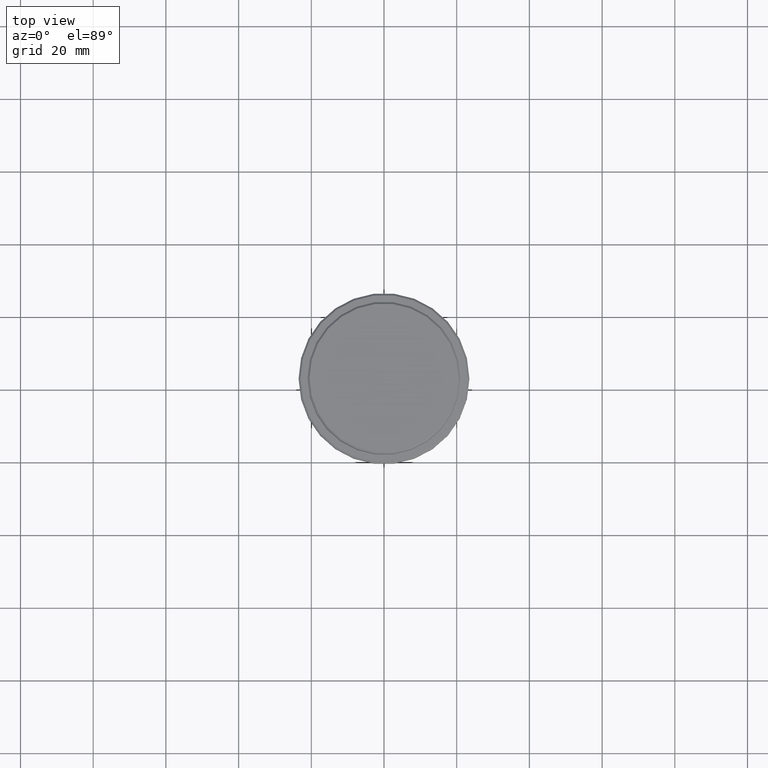
[diagram: clean part render]
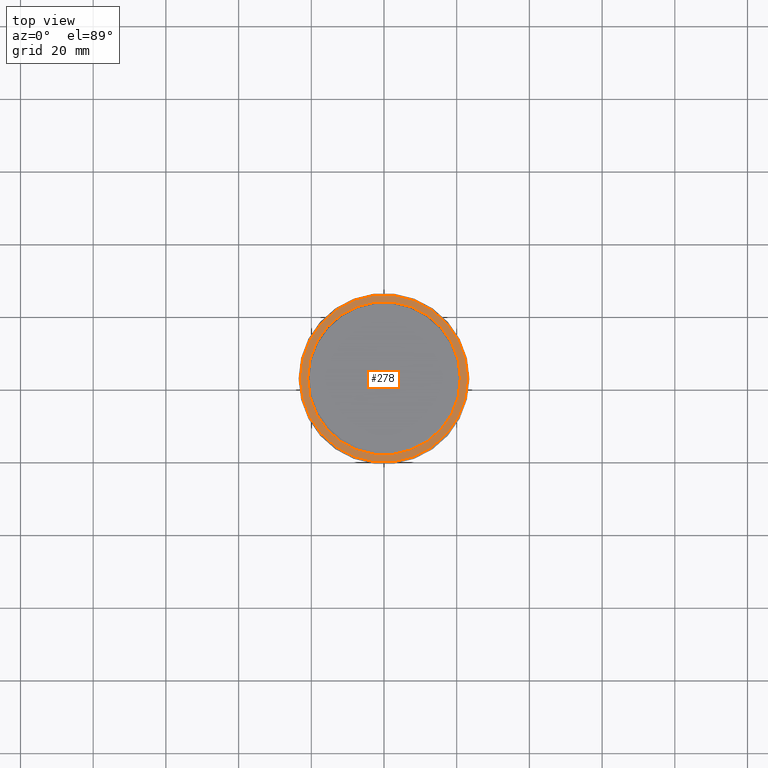
[diagram: same view with one face highlighted and labeled with its STEP entity id]
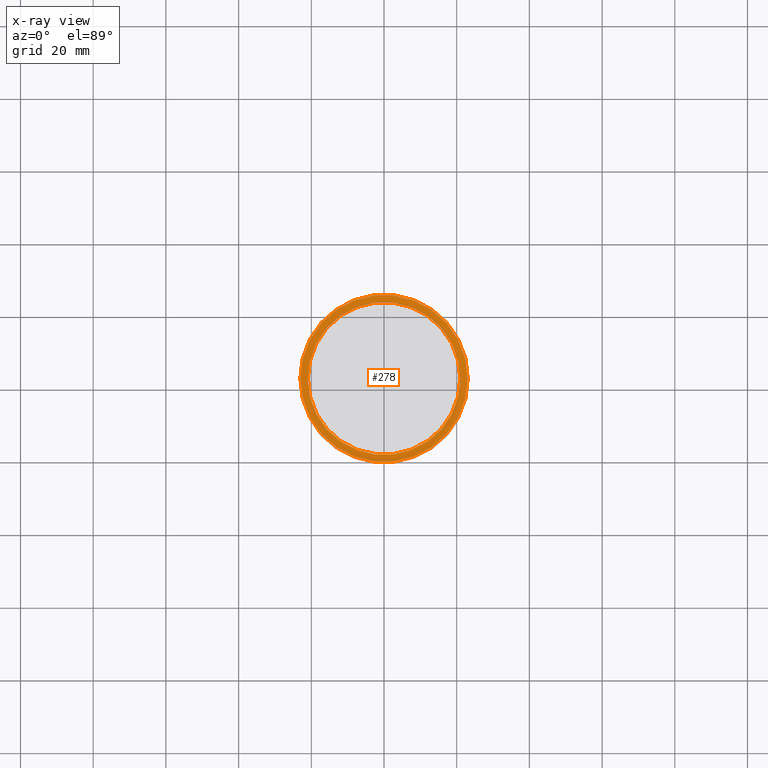
[diagram: x-ray of the same camera — body ghosted, the highlighted face saturated]
A machine part, top view. The second image highlights one B-rep face of the part: STEP entity #278.
The next image is the same camera in x-ray: the body ghosted, the highlighted face saturated — about 0% of this face is hidden behind the body in this view.
In plain terms, the highlighted planar face has unit normal (0, -0, 1).
Its self-contained STEP definition (entity closure, byte-faithful):
#46 = DIRECTION ( 'NONE',  ( 1.000000000000000000, 0.000000000000000000, 0.000000000000000000 ) ) ;
#61 = DIRECTION ( 'NONE',  ( -0.000000000000000000, -0.000000000000000000, 1.000000000000000000 ) ) ;
#90 = PLANE ( 'NONE',  #664 ) ;
#110 = CARTESIAN_POINT ( 'NONE',  ( -20.99999999999999289, 2.571758278209440872E-15, -9.000000000000000000 ) ) ;
#147 = AXIS2_PLACEMENT_3D ( 'NONE', #512, #946, #703 ) ;
#165 = CARTESIAN_POINT ( 'NONE',  ( 0.000000000000000000, 0.000000000000000000, -9.000000000000000000 ) ) ;
#208 = DIRECTION ( 'NONE',  ( 1.000000000000000000, 0.000000000000000000, 0.000000000000000000 ) ) ;
#237 = ORIENTED_EDGE ( 'NONE', *, *, #1296, .T. ) ;
#264 = CIRCLE ( 'NONE', #1221, 23.00000000000002487 ) ;
#278 = ADVANCED_FACE ( 'NONE', ( #1137, #1062 ), #90, .T. ) ;
#427 = ORIENTED_EDGE ( 'NONE', *, *, #666, .T. ) ;
#489 = EDGE_LOOP ( 'NONE', ( #237, #1202 ) ) ;
#509 = DIRECTION ( 'NONE',  ( 1.000000000000000000, 0.000000000000000000, 0.000000000000000000 ) ) ;
#512 = CARTESIAN_POINT ( 'NONE',  ( 0.000000000000000000, 0.000000000000000000, -9.000000000000000000 ) ) ;
#594 = VERTEX_POINT ( 'NONE', #716 ) ;
#597 = CARTESIAN_POINT ( 'NONE',  ( 0.000000000000000000, 0.000000000000000000, -9.000000000000000000 ) ) ;
#616 = CARTESIAN_POINT ( 'NONE',  ( -23.00000000000002487, 0.000000000000000000, -9.000000000000000000 ) ) ;
#664 = AXIS2_PLACEMENT_3D ( 'NONE', #1070, #1300, #208 ) ;
#666 = EDGE_CURVE ( 'NONE', #594, #1034, #866, .T. ) ;
#703 = DIRECTION ( 'NONE',  ( 1.000000000000000000, 0.000000000000000000, 0.000000000000000000 ) ) ;
#716 = CARTESIAN_POINT ( 'NONE',  ( 23.00000000000002487, 2.847303808017597717E-15, -9.000000000000000000 ) ) ;
#799 = CIRCLE ( 'NONE', #147, 20.99999999999999289 ) ;
#824 = DIRECTION ( 'NONE',  ( 1.000000000000000000, 0.000000000000000000, 0.000000000000000000 ) ) ;
#851 = VERTEX_POINT ( 'NONE', #110 ) ;
#865 = AXIS2_PLACEMENT_3D ( 'NONE', #1161, #961, #509 ) ;
#866 = CIRCLE ( 'NONE', #1198, 23.00000000000002487 ) ;
#910 = ORIENTED_EDGE ( 'NONE', *, *, #1157, .T. ) ;
#917 = EDGE_LOOP ( 'NONE', ( #910, #427 ) ) ;
#946 = DIRECTION ( 'NONE',  ( 0.000000000000000000, 0.000000000000000000, -1.000000000000000000 ) ) ;
#958 = CIRCLE ( 'NONE', #865, 20.99999999999999289 ) ;
#961 = DIRECTION ( 'NONE',  ( 0.000000000000000000, 0.000000000000000000, -1.000000000000000000 ) ) ;
#1034 = VERTEX_POINT ( 'NONE', #616 ) ;
#1062 = FACE_BOUND ( 'NONE', #489, .T. ) ;
#1070 = CARTESIAN_POINT ( 'NONE',  ( 0.000000000000000000, 20.49999999999999645, -9.000000000000000000 ) ) ;
#1130 = CARTESIAN_POINT ( 'NONE',  ( 20.99999999999999289, 0.000000000000000000, -9.000000000000000000 ) ) ;
#1137 = FACE_OUTER_BOUND ( 'NONE', #917, .T. ) ;
#1157 = EDGE_CURVE ( 'NONE', #1034, #594, #264, .T. ) ;
#1161 = CARTESIAN_POINT ( 'NONE',  ( 0.000000000000000000, 0.000000000000000000, -9.000000000000000000 ) ) ;
#1187 = EDGE_CURVE ( 'NONE', #851, #1203, #799, .T. ) ;
#1198 = AXIS2_PLACEMENT_3D ( 'NONE', #165, #1246, #824 ) ;
#1202 = ORIENTED_EDGE ( 'NONE', *, *, #1187, .T. ) ;
#1203 = VERTEX_POINT ( 'NONE', #1130 ) ;
#1221 = AXIS2_PLACEMENT_3D ( 'NONE', #597, #61, #46 ) ;
#1246 = DIRECTION ( 'NONE',  ( -0.000000000000000000, -0.000000000000000000, 1.000000000000000000 ) ) ;
#1296 = EDGE_CURVE ( 'NONE', #1203, #851, #958, .T. ) ;
#1300 = DIRECTION ( 'NONE',  ( 0.000000000000000000, -0.000000000000000000, 1.000000000000000000 ) ) ;